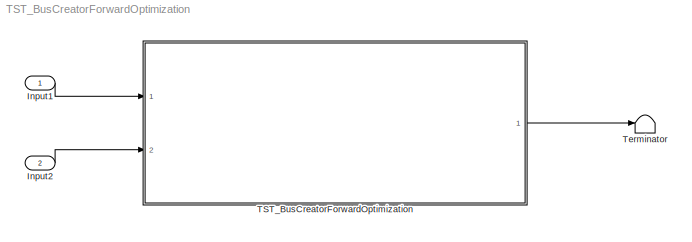
MODEL TST_BusCreatorForwardOptimization
KIND model
BLOCK [Inport] Input1
  BusOutputAsStruct = on
  IconDisplay = Port number
  OutDataTypeStr = double
  SID = 23
BLOCK [Inport] Input2
  BusOutputAsStruct = on
  IconDisplay = Port number
  OutDataTypeStr = uint32
  Port = 2
  PortDimensions = 1
  SID = 58
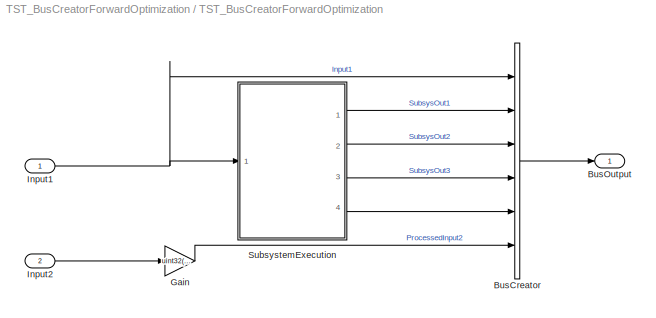
BLOCK [SubSystem] TST_BusCreatorForwardOptimization
  Ports = [2, 1]
  RequestExecContextInheritance = off
  SID = 2
  TreatAsAtomicUnit = on
BLOCK [BusCreator] TST_BusCreatorForwardOptimization/BusCreator
  DisplayOption = bar
  InheritFromInputs = on
  Inputs = 6
  NonVirtualBus = on
  Ports = [6, 1]
  SID = 54
BLOCK [Outport] TST_BusCreatorForwardOptimization/BusOutput
  BusOutputAsStruct = on
  IconDisplay = Port number
  SID = 60
BLOCK [Gain] TST_BusCreatorForwardOptimization/Gain
  Gain = uint32(3)
  OutDataTypeStr = uint32
  ParamDataTypeStr = uint32
  SID = 57
  SaturateOnIntegerOverflow = off
BLOCK [Inport] TST_BusCreatorForwardOptimization/Input1
  BusOutputAsStruct = on
  IconDisplay = Port number
  OutDataTypeStr = double
  PortDimensions = 1
  SID = 39
BLOCK [Inport] TST_BusCreatorForwardOptimization/Input2
  BusOutputAsStruct = on
  IconDisplay = Port number
  OutDataTypeStr = uint32
  Port = 2
  PortDimensions = 1
  SID = 48
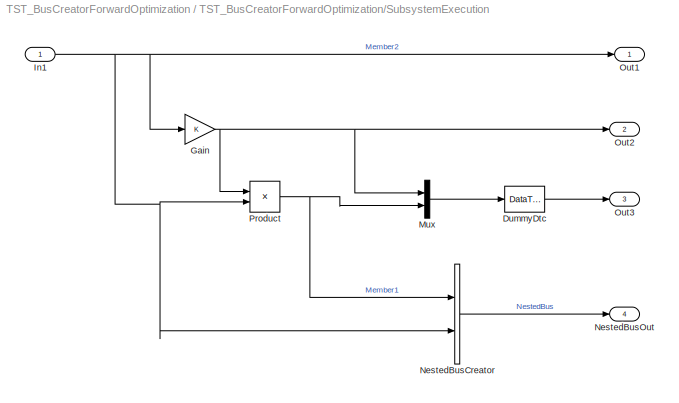
BLOCK [SubSystem] TST_BusCreatorForwardOptimization/SubsystemExecution
  Ports = [1, 4]
  RequestExecContextInheritance = off
  SID = 49
  TreatAsAtomicUnit = on
BLOCK [DataTypeConversion] TST_BusCreatorForwardOptimization/SubsystemExecution/DummyDtc
  RndMeth = Floor
  SID = 62
  SaturateOnIntegerOverflow = off
BLOCK [Gain] TST_BusCreatorForwardOptimization/SubsystemExecution/Gain
  OutDataTypeStr = Inherit: Inherit via internal rule
  ParamDataTypeStr = Inherit: Inherit via internal rule
  SID = 55
  SaturateOnIntegerOverflow = off
BLOCK [Inport] TST_BusCreatorForwardOptimization/SubsystemExecution/In1
  IconDisplay = Port number
  SID = 50
BLOCK [Mux] TST_BusCreatorForwardOptimization/SubsystemExecution/Mux
  DisplayOption = bar
  Inputs = 2
  Ports = [2, 1]
  SID = 61
BLOCK [BusCreator] TST_BusCreatorForwardOptimization/SubsystemExecution/NestedBusCreator
  DisplayOption = bar
  InheritFromInputs = on
  Inputs = 2
  NonVirtualBus = on
  Ports = [2, 1]
  SID = 68
BLOCK [Outport] TST_BusCreatorForwardOptimization/SubsystemExecution/NestedBusOut
  BusOutputAsStruct = on
  IconDisplay = Port number
  Port = 4
  SID = 70
BLOCK [Outport] TST_BusCreatorForwardOptimization/SubsystemExecution/Out1
  IconDisplay = Port number
  SID = 51
BLOCK [Outport] TST_BusCreatorForwardOptimization/SubsystemExecution/Out2
  IconDisplay = Port number
  Port = 2
  SID = 52
BLOCK [Outport] TST_BusCreatorForwardOptimization/SubsystemExecution/Out3
  IconDisplay = Port number
  Port = 3
  SID = 53
BLOCK [Product] TST_BusCreatorForwardOptimization/SubsystemExecution/Product
  InputSameDT = off
  OutDataTypeStr = Inherit: Inherit via internal rule
  Ports = [2, 1]
  SID = 56
  SaturateOnIntegerOverflow = off
BLOCK [Terminator] Terminator
  SID = 67
LINE Input1:1 -> TST_BusCreatorForwardOptimization:1
LINE Input2:1 -> TST_BusCreatorForwardOptimization:2
LINE TST_BusCreatorForwardOptimization/BusCreator:1 -> TST_BusCreatorForwardOptimization/BusOutput:1
LINE TST_BusCreatorForwardOptimization/Gain:1 -> TST_BusCreatorForwardOptimization/BusCreator:6
NET TST_BusCreatorForwardOptimization/Input1:1 -> TST_BusCreatorForwardOptimization/BusCreator:1, TST_BusCreatorForwardOptimization/SubsystemExecution:1
LINE TST_BusCreatorForwardOptimization/Input2:1 -> TST_BusCreatorForwardOptimization/Gain:1
LINE TST_BusCreatorForwardOptimization/SubsystemExecution/DummyDtc:1 -> TST_BusCreatorForwardOptimization/SubsystemExecution/Out3:1
NET TST_BusCreatorForwardOptimization/SubsystemExecution/Gain:1 -> TST_BusCreatorForwardOptimization/SubsystemExecution/Mux:1, TST_BusCreatorForwardOptimization/SubsystemExecution/Out2:1, TST_BusCreatorForwardOptimization/SubsystemExecution/Product:1
NET TST_BusCreatorForwardOptimization/SubsystemExecution/In1:1 -> TST_BusCreatorForwardOptimization/SubsystemExecution/Gain:1, TST_BusCreatorForwardOptimization/SubsystemExecution/NestedBusCreator:2, TST_BusCreatorForwardOptimization/SubsystemExecution/Out1:1, TST_BusCreatorForwardOptimization/SubsystemExecution/Product:2
LINE TST_BusCreatorForwardOptimization/SubsystemExecution/Mux:1 -> TST_BusCreatorForwardOptimization/SubsystemExecution/DummyDtc:1
LINE TST_BusCreatorForwardOptimization/SubsystemExecution/NestedBusCreator:1 -> TST_BusCreatorForwardOptimization/SubsystemExecution/NestedBusOut:1
NET TST_BusCreatorForwardOptimization/SubsystemExecution/Product:1 -> TST_BusCreatorForwardOptimization/SubsystemExecution/Mux:2, TST_BusCreatorForwardOptimization/SubsystemExecution/NestedBusCreator:1
LINE TST_BusCreatorForwardOptimization/SubsystemExecution:1 -> TST_BusCreatorForwardOptimization/BusCreator:2
LINE TST_BusCreatorForwardOptimization/SubsystemExecution:2 -> TST_BusCreatorForwardOptimization/BusCreator:3
LINE TST_BusCreatorForwardOptimization/SubsystemExecution:3 -> TST_BusCreatorForwardOptimization/BusCreator:4
LINE TST_BusCreatorForwardOptimization/SubsystemExecution:4 -> TST_BusCreatorForwardOptimization/BusCreator:5
LINE TST_BusCreatorForwardOptimization:1 -> Terminator:1
note: NET lines group one-source signal fan-out (src -> all destinations, sorted); 1:1 wires keep LINE
